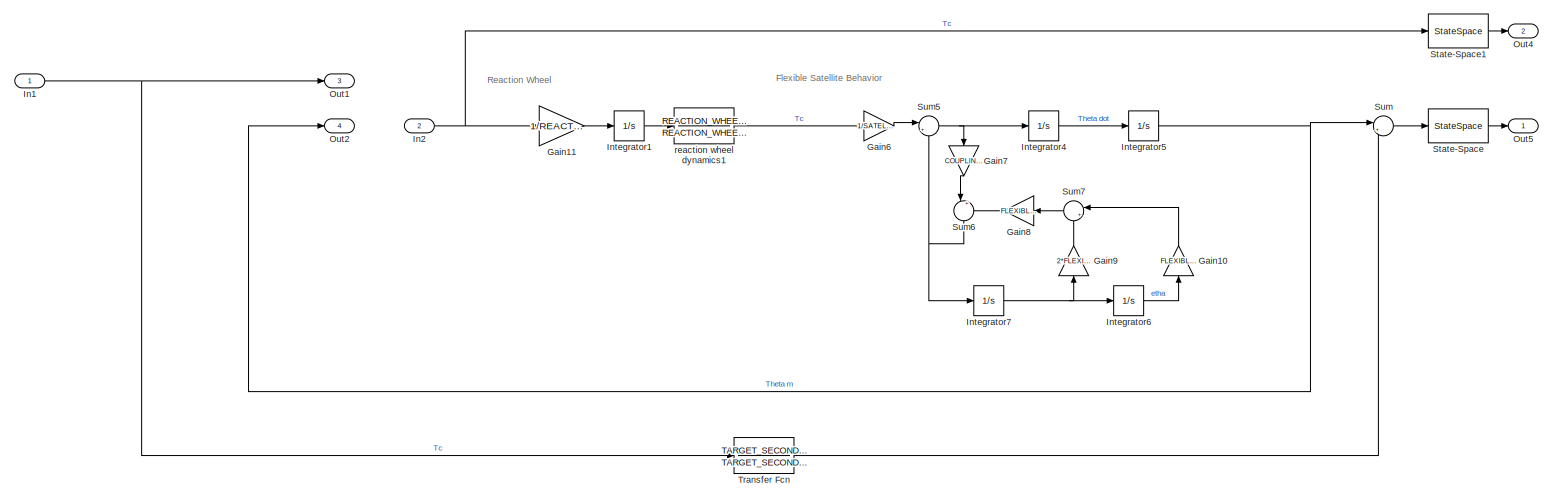
[diagram: root canvas - part 1/1, most of the canvas]
MODEL slx_f0bdcd61d509
KIND model
CONFIG AbsTol = auto
CONFIG EnableMultiTasking = off
CONFIG FixedStep = auto
CONFIG MaxStep = auto
CONFIG MinStep = auto
CONFIG RelTol = 1e-3
CONFIG SampleTimeConstraint = Unconstrained
CONFIG SolverName = VariableStepAuto
CONFIG StartTime = 0.0
CONFIG StopTime = 200
BLOCK [Gain] Gain10
  Gain = FLEXIBLE_MODE_FREQUENCY
  NameLocation = right
BLOCK [Gain] Gain11
  Gain = 1/REACTION_WHEEL_INERTIA
BLOCK [Gain] Gain6
  Gain = 1/SATELLITE_INERTIA
BLOCK [Gain] Gain7
  Gain = COUPLING_COEFFICIENT
  NameLocation = left
BLOCK [Gain] Gain8
  Gain = FLEXIBLE_MODE_FREQUENCY
  NameLocation = top
BLOCK [Gain] Gain9
  Gain = 2*FLEXIBLE_MODE_DAMPING_RATIO
  NameLocation = right
BLOCK [Inport] In1
BLOCK [Inport] In2
  Port = 2
BLOCK [Integrator] Integrator1
  Ports = [1, 1]
BLOCK [Integrator] Integrator4
  Ports = [1, 1]
BLOCK [Integrator] Integrator5
  Ports = [1, 1]
BLOCK [Integrator] Integrator6
  InitialCondition = INITIAL_CONDITION_ON_STATE
  Ports = [1, 1]
BLOCK [Integrator] Integrator7
  Ports = [1, 1]
BLOCK [Outport] Out1
  Port = 3
BLOCK [Outport] Out2
  Port = 4
BLOCK [Outport] Out4
  Port = 2
BLOCK [Outport] Out5
BLOCK [StateSpace] State-Space
  A = differenceToSecondOrderWeightingStateSpace.A
  B = differenceToSecondOrderWeightingStateSpace.B
  C = differenceToSecondOrderWeightingStateSpace.C
  D = differenceToSecondOrderWeightingStateSpace.D
  InitialCondition = 0
  Ports = [1, 1]
BLOCK [StateSpace] State-Space1
  A = torqueWeightingStateSpace.A
  B = torqueWeightingStateSpace.B
  C = torqueWeightingStateSpace.C
  D = torqueWeightingStateSpace.D
  InitialCondition = 0
  Ports = [1, 1]
BLOCK [Sum] Sum
  Inputs = |+-
  Ports = [2, 1]
BLOCK [Sum] Sum5
  Inputs = |++
  Ports = [2, 1]
BLOCK [Sum] Sum6
  Inputs = |+-
  NameLocation = left
  Ports = [2, 1]
BLOCK [Sum] Sum7
  Inputs = |++
  NameLocation = top
  Ports = [2, 1]
BLOCK [TransferFcn] Transfer Fcn
  Denominator = TARGET_SECOND_ORDER.TRANSFER_FUNCTION.Denominator{1}
  Numerator = TARGET_SECOND_ORDER.TRANSFER_FUNCTION.Numerator{1}
BLOCK [TransferFcn] reaction wheel dynamics1
  Denominator = REACTION_WHEEL_DYNAMICS_DENOMINATOR
  Numerator = REACTION_WHEEL_DYNAMICS_NUMERATOR
ANNOTATION (root): Flexible Satellite Behavior
ANNOTATION (root): Reaction Wheel
LINE Gain10:1 -> Sum7:1
LINE Gain11:1 -> Integrator1:1
LINE Gain6:1 -> Sum5:1
LINE Gain7:1 -> Sum6:1
LINE Gain8:1 -> Sum6:2
LINE Gain9:1 -> Sum7:2
NET In1:1 -> Out1:1, Transfer Fcn:1
NET In2:1 -> Gain11:1, State-Space1:1
LINE Integrator1:1 -> reaction wheel dynamics1:1
LINE Integrator4:1 -> Integrator5:1
NET Integrator5:1 -> Out2:1, Sum:1
LINE Integrator6:1 -> Gain10:1
NET Integrator7:1 -> Gain9:1, Integrator6:1
LINE State-Space1:1 -> Out4:1
LINE State-Space:1 -> Out5:1
NET Sum5:1 -> Gain7:1, Integrator4:1
NET Sum6:1 -> Integrator7:1, Sum5:2
LINE Sum7:1 -> Gain8:1
LINE Sum:1 -> State-Space:1
LINE Transfer Fcn:1 -> Sum:2
LINE reaction wheel dynamics1:1 -> Gain6:1
note: NET lines group one-source signal fan-out (src -> all destinations, sorted); 1:1 wires keep LINE
